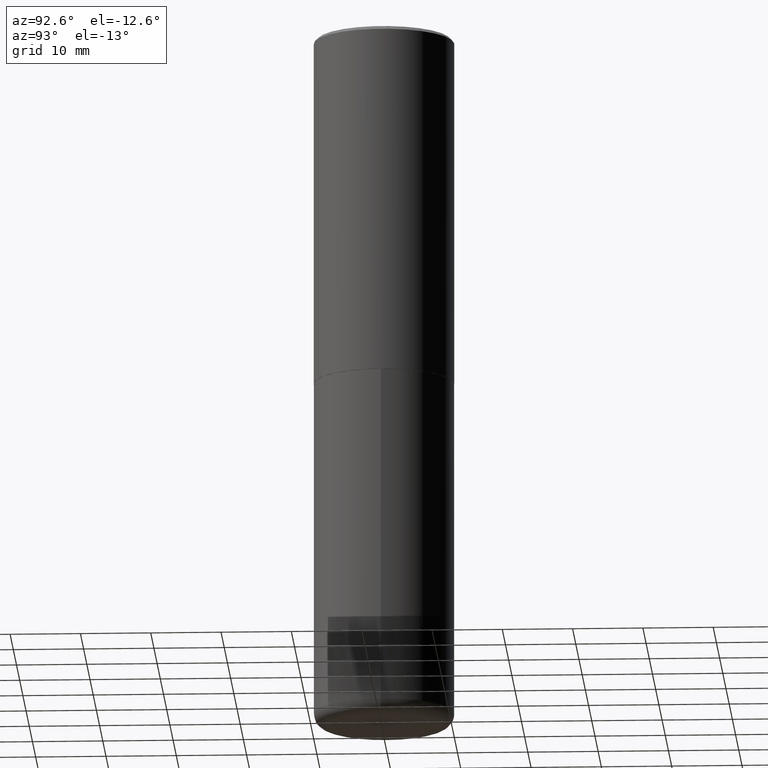
[diagram: clean part render]
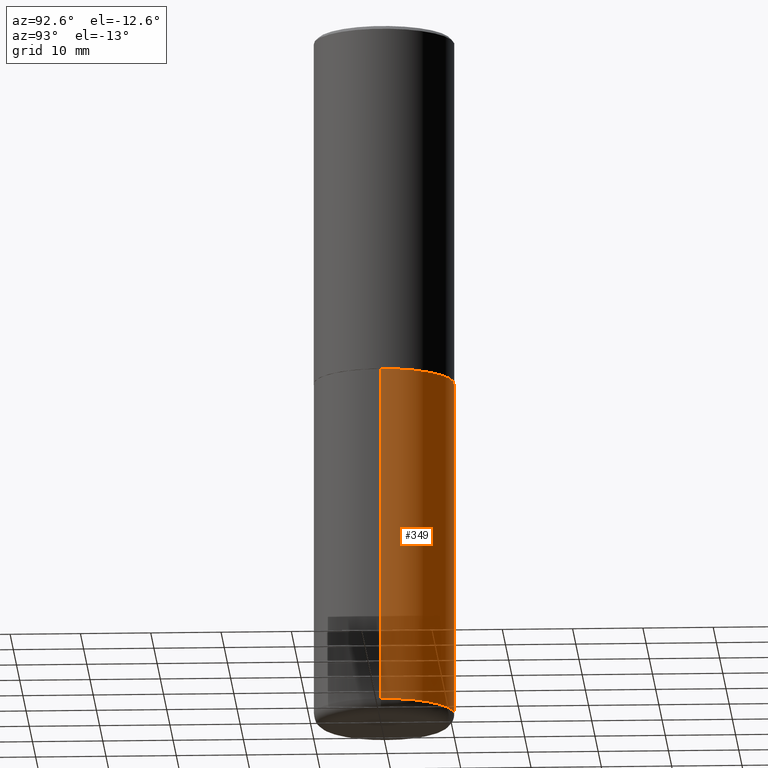
[diagram: same view with one face highlighted and labeled with its STEP entity id]
A machine part, auxiliary view. The second image highlights one B-rep face of the part: STEP entity #349.
In plain terms, the highlighted cylindrical surface (partial cylindrical patch) has radius 10 mm, axis along (-0, 0, 1).
Its self-contained STEP definition (entity closure, byte-faithful):
#9 = DIRECTION ( 'NONE',  ( -2.445468806185136597E-29, 3.491481338843145583E-15, 1.000000000000000000 ) ) ;
#14 = AXIS2_PLACEMENT_3D ( 'NONE', #389, #25, #62 ) ;
#18 = CARTESIAN_POINT ( 'NONE',  ( 0.3937000000000002164, -1.622037485586359329E-14, -3.858300000000000285 ) ) ;
#20 = DIRECTION ( 'NONE',  ( -2.445468806185136597E-29, 3.491481338843145583E-15, 1.000000000000000000 ) ) ;
#25 = DIRECTION ( 'NONE',  ( -2.445468806185136597E-29, 3.491481338843145583E-15, 1.000000000000000000 ) ) ;
#38 = ORIENTED_EDGE ( 'NONE', *, *, #142, .T. ) ;
#62 = DIRECTION ( 'NONE',  ( 1.000000000000000000, -6.982962677686265133E-15, 0.000000000000000000 ) ) ;
#78 = CARTESIAN_POINT ( 'NONE',  ( 0.000000000000000000, 0.000000000000000000, 0.000000000000000000 ) ) ;
#104 = CARTESIAN_POINT ( 'NONE',  ( 9.435352294904112142E-29, -1.347118244965850850E-14, -3.858300000000000285 ) ) ;
#110 = LINE ( 'NONE', #325, #415 ) ;
#134 = EDGE_CURVE ( 'NONE', #230, #197, #248, .T. ) ;
#138 = AXIS2_PLACEMENT_3D ( 'NONE', #78, #20, #284 ) ;
#142 = EDGE_CURVE ( 'NONE', #324, #197, #193, .T. ) ;
#161 = DIRECTION ( 'NONE',  ( -2.445468806185136877E-29, 3.491481338843145188E-15, 1.000000000000000000 ) ) ;
#188 = AXIS2_PLACEMENT_3D ( 'NONE', #104, #9, #242 ) ;
#193 = LINE ( 'NONE', #288, #271 ) ;
#197 = VERTEX_POINT ( 'NONE', #315 ) ;
#230 = VERTEX_POINT ( 'NONE', #312 ) ;
#238 = VERTEX_POINT ( 'NONE', #18 ) ;
#241 = CIRCLE ( 'NONE', #188, 0.3937000000000001054 ) ;
#242 = DIRECTION ( 'NONE',  ( 1.000000000000000000, -6.982962677686266711E-15, 0.000000000000000000 ) ) ;
#244 = EDGE_CURVE ( 'NONE', #238, #230, #110, .T. ) ;
#248 = CIRCLE ( 'NONE', #14, 0.3937000000000000499 ) ;
#258 = EDGE_LOOP ( 'NONE', ( #316, #38, #285, #386 ) ) ;
#271 = VECTOR ( 'NONE', #161, 39.37007874015748143 ) ;
#274 = FACE_OUTER_BOUND ( 'NONE', #258, .T. ) ;
#284 = DIRECTION ( 'NONE',  ( 1.000000000000000000, -6.982962677686266711E-15, 4.876176775795935793E-29 ) ) ;
#285 = ORIENTED_EDGE ( 'NONE', *, *, #134, .F. ) ;
#288 = CARTESIAN_POINT ( 'NONE',  ( -0.3937000000000001054, 2.797406750687515181E-15, -1.936584745033357016E-29 ) ) ;
#312 = CARTESIAN_POINT ( 'NONE',  ( 0.3937000000000000499, -9.622173421717814924E-15, -1.968500000000000139 ) ) ;
#314 = CYLINDRICAL_SURFACE ( 'NONE', #138, 0.3937000000000001054 ) ;
#315 = CARTESIAN_POINT ( 'NONE',  ( -0.3937000000000000499, -7.374674981898105316E-15, -1.968500000000000139 ) ) ;
#316 = ORIENTED_EDGE ( 'NONE', *, *, #373, .T. ) ;
#324 = VERTEX_POINT ( 'NONE', #369 ) ;
#325 = CARTESIAN_POINT ( 'NONE',  ( 0.3937000000000001054, -2.749192406205084005E-15, 1.919750796630860452E-29 ) ) ;
#331 = DIRECTION ( 'NONE',  ( -2.445468806185136877E-29, 3.491481338843145188E-15, 1.000000000000000000 ) ) ;
#349 = ADVANCED_FACE ( 'NONE', ( #274 ), #314, .T. ) ;
#369 = CARTESIAN_POINT ( 'NONE',  ( -0.3937000000000002164, -1.067377569897099292E-14, -3.858300000000000285 ) ) ;
#373 = EDGE_CURVE ( 'NONE', #238, #324, #241, .T. ) ;
#386 = ORIENTED_EDGE ( 'NONE', *, *, #244, .F. ) ;
#389 = CARTESIAN_POINT ( 'NONE',  ( 4.813905344975441835E-29, -6.872981015512731707E-15, -1.968500000000000139 ) ) ;
#415 = VECTOR ( 'NONE', #331, 39.37007874015748143 ) ;